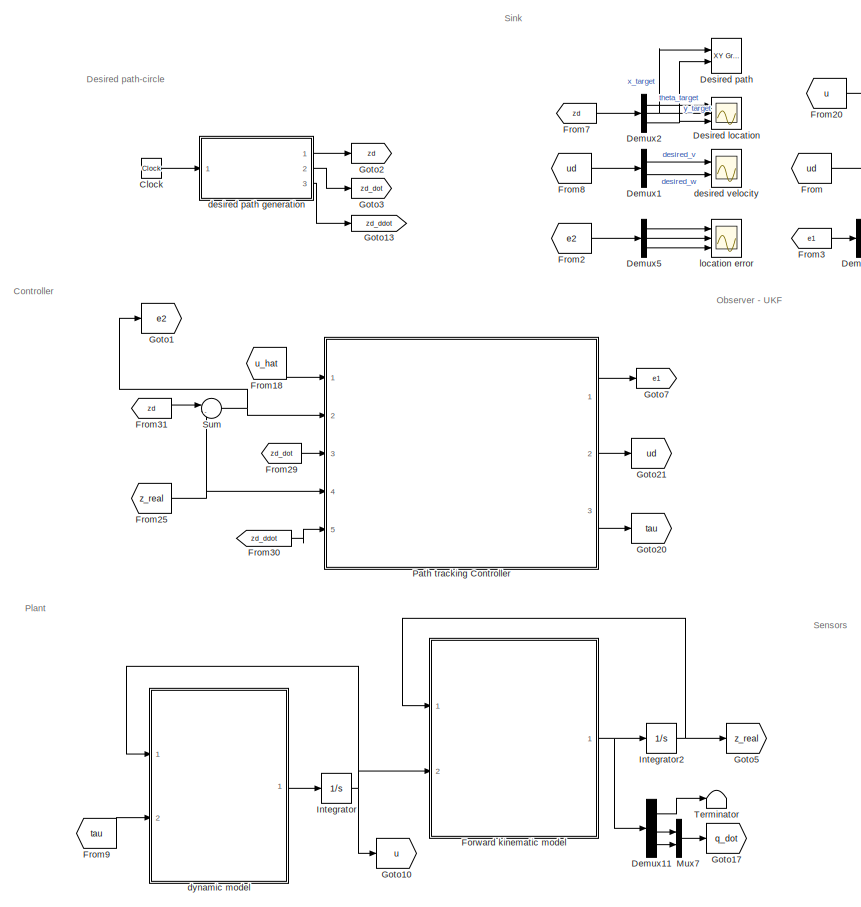
[diagram: root canvas - part 1/2, left side, full height]
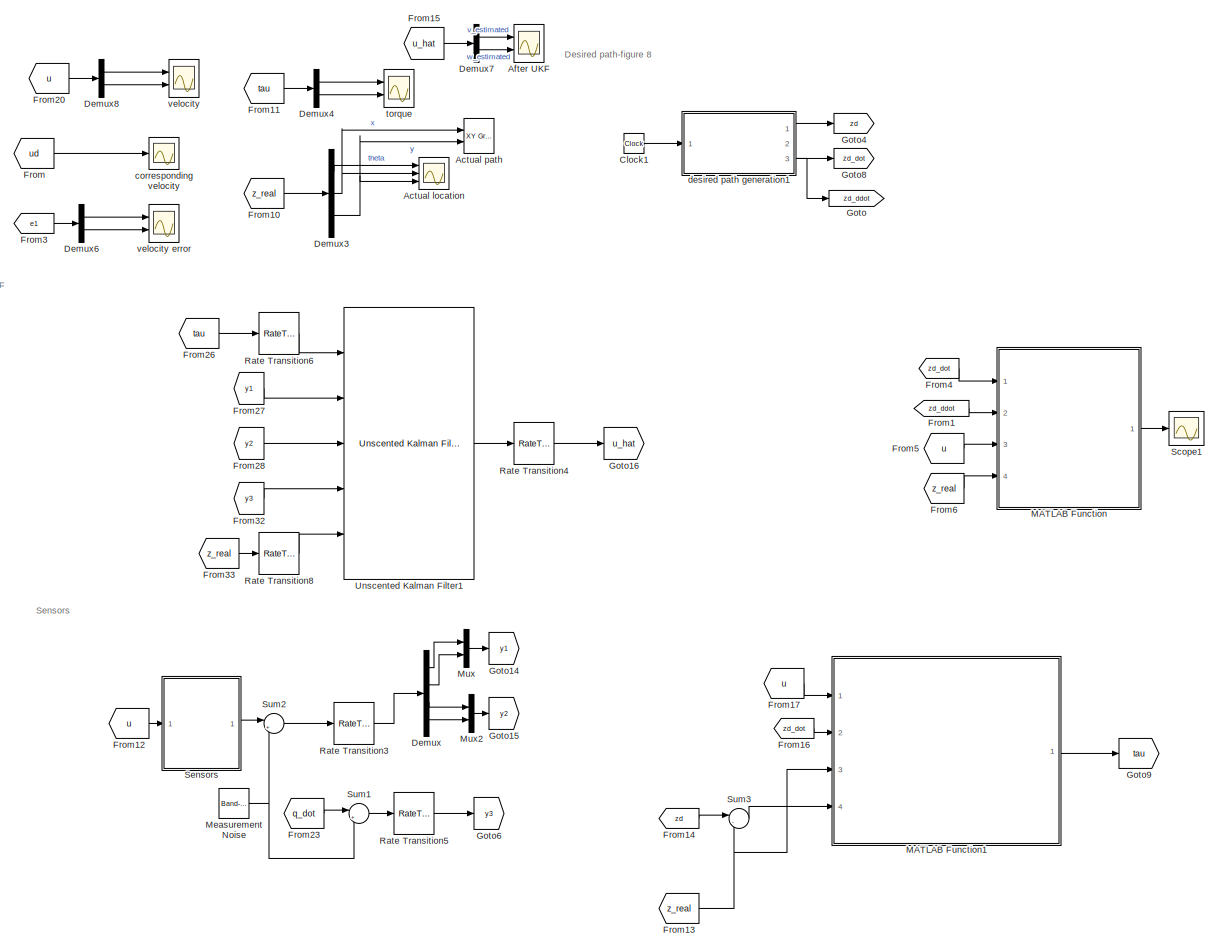
[diagram: root canvas - part 2/2, right side, full height]
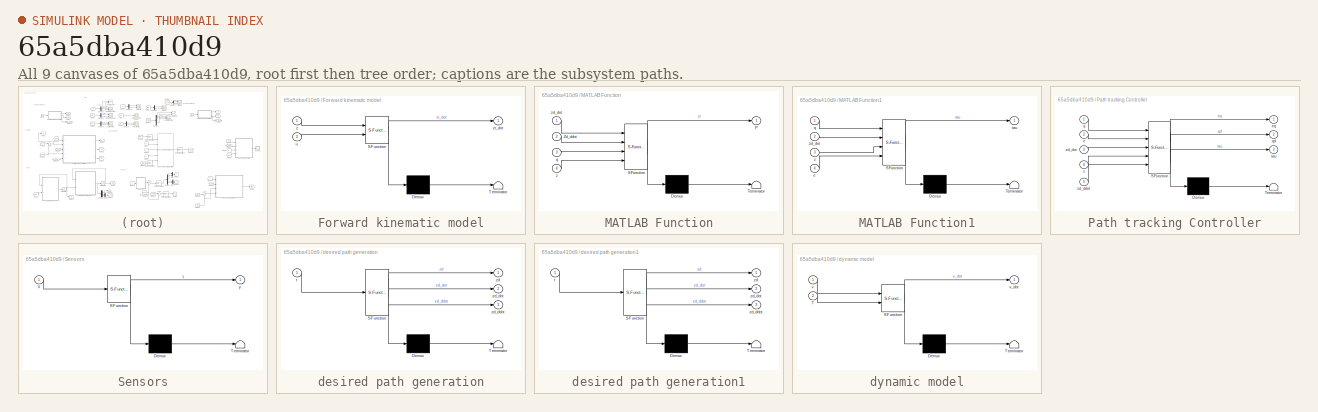
[diagram: thumbnail index - all 9 canvases of the model, root first then tree order]
MODEL slx_65a5dba410d9
KIND model
CONFIG AbsTol = auto
CONFIG EnableMultiTasking = off
CONFIG FixedStep = 1e-3
CONFIG MaxStep = 1e-2
CONFIG MinStep = auto
CONFIG RelTol = 1e-3
CONFIG SampleTimeConstraint = Unconstrained
CONFIG Solver = FixedStepAuto
CONFIG SolverName = FixedStepAuto
CONFIG StartTime = 0.0
CONFIG StopTime = 20
BLOCK [Scope] Actual location
  Floating = off
  NumInputPorts = 3
  Ports = [3]
  ScopeSpecificationString = Simulink.scopes.TimeScopeBlockCfg('CurrentConfiguration', extmgr.ConfigurationSet(extmgr.Configuration('Core','General UI',true),extmgr.Configuration('Core','Source UI',true),extmgr.Configuration('Sources','WiredSimulink',true,'DataLoggingVariableName','ScopeData3'),extmgr.Configuration('Visuals','Time Domain',true,'SerializedDisplays',{struct('MinYLimReal','-1.35586','MaxYLimReal','4.49764','YLab...<+2693ch>
BLOCK [Reference] Actual path  REF=simulink/Sinks/XY Graph
  Ports = [2]
  SourceBlock = simulink/Sinks/XY Graph
  SourceProductBaseCode = SL
  SourceProductName = Simulink
  SourceType = XY scope.
BLOCK [Scope] After UKF
  Floating = off
  NumInputPorts = 2
  Ports = [2]
  ScopeSpecificationString = Simulink.scopes.TimeScopeBlockCfg('CurrentConfiguration', extmgr.ConfigurationSet(extmgr.Configuration('Core','General UI',true),extmgr.Configuration('Core','Source UI',true),extmgr.Configuration('Sources','WiredSimulink',true,'DataLoggingVariableName','ScopeData1'),extmgr.Configuration('Visuals','Time Domain',true,'SerializedDisplays',{struct('MinYLimReal','-0.44906','MaxYLimReal','4.06747','YLab...<+2119ch>
BLOCK [Clock] Clock
  Commented = on
BLOCK [Clock] Clock1
BLOCK [Demux] Demux
  DisplayOption = bar
  Ports = [1, 4]
BLOCK [Demux] Demux1
  DisplayOption = bar
  Outputs = 2
  Ports = [1, 2]
BLOCK [Demux] Demux11
  DisplayOption = bar
  Outputs = 3
  Ports = [1, 3]
BLOCK [Demux] Demux2
  DisplayOption = bar
  Outputs = 3
  Ports = [1, 3]
BLOCK [Demux] Demux3
  DisplayOption = bar
  Outputs = 3
  Ports = [1, 3]
BLOCK [Demux] Demux4
  DisplayOption = bar
  Outputs = 2
  Ports = [1, 2]
BLOCK [Demux] Demux5
  DisplayOption = bar
  Outputs = 3
  Ports = [1, 3]
BLOCK [Demux] Demux6
  DisplayOption = bar
  Outputs = 2
  Ports = [1, 2]
BLOCK [Demux] Demux7
  DisplayOption = bar
  Outputs = 2
  Ports = [1, 2]
BLOCK [Demux] Demux8
  DisplayOption = bar
  Outputs = 2
  Ports = [1, 2]
BLOCK [Scope] Desired location
  Floating = off
  NumInputPorts = 3
  Ports = [3]
  ScopeSpecificationString = Simulink.scopes.TimeScopeBlockCfg('CurrentConfiguration', extmgr.ConfigurationSet(extmgr.Configuration('Core','General UI',true),extmgr.Configuration('Core','Source UI',true),extmgr.Configuration('Sources','WiredSimulink',true,'DataLoggingVariableName','ScopeData2'),extmgr.Configuration('Visuals','Time Domain',true,'SerializedDisplays',{struct('MinYLimReal','-0.98175','MaxYLimReal','0.98175','YLab...<+2703ch>
BLOCK [Reference] Desired path   REF=simulink/Sinks/XY Graph
  Ports = [2]
  SourceBlock = simulink/Sinks/XY Graph
  SourceProductBaseCode = SL
  SourceProductName = Simulink
  SourceType = XY scope.
BLOCK [SubSystem] Forward kinematic model
  ErrorFcn = Stateflow.Translate.translate
  PermitHierarchicalResolution = ExplicitOnly
  Ports = [2, 1]
  RequestExecContextInheritance = off
  SFBlockType = MATLAB Function
  TreatAsAtomicUnit = on
BLOCK [Demux] Forward kinematic model/ Demux 
  Outputs = 1
  Ports = [1, 1]
BLOCK [S-Function] Forward kinematic model/ SFunction 
  EnableBusSupport = on
  FunctionName = sf_sfun
  Parameters = d,r
  PortCounts = [2 2]
  Ports = [2, 2]
  SFcnIsStateOwnerBlock = off
  SFunctionDeploymentMode = off
  Tag = Stateflow S-Function 9
BLOCK [Terminator] Forward kinematic model/ Terminator 
BLOCK [Inport] Forward kinematic model/u
  IconDisplay = Port number
  Port = 2
BLOCK [Inport] Forward kinematic model/z
  IconDisplay = Port number
BLOCK [Outport] Forward kinematic model/zr_dot
  IconDisplay = Port number
  VectorParamsAs1DForOutWhenUnconnected = off
BLOCK [From] From
  GotoTag = ud
BLOCK [From] From1
  GotoTag = zd_ddot
BLOCK [From] From10
  GotoTag = z_real
BLOCK [From] From11
  GotoTag = tau
BLOCK [From] From12
  GotoTag = u
BLOCK [From] From13
  Commented = on
  GotoTag = z_real
BLOCK [From] From14
  Commented = on
  GotoTag = zd
BLOCK [From] From15
  GotoTag = u_hat
BLOCK [From] From16
  Commented = on
  GotoTag = zd_dot
BLOCK [From] From17
  Commented = on
  GotoTag = u
BLOCK [From] From18
  GotoTag = u_hat
BLOCK [From] From2
  GotoTag = e2
BLOCK [From] From20
  GotoTag = u
BLOCK [From] From23
  GotoTag = q_dot
BLOCK [From] From25
  GotoTag = z_real
BLOCK [From] From26
  GotoTag = tau
BLOCK [From] From27
  GotoTag = y1
BLOCK [From] From28
  GotoTag = y2
BLOCK [From] From29
  GotoTag = zd_dot
BLOCK [From] From3
  GotoTag = e1
BLOCK [From] From30
  GotoTag = zd_ddot
BLOCK [From] From31
  GotoTag = zd
BLOCK [From] From32
  GotoTag = y3
BLOCK [From] From33
  GotoTag = z_real
BLOCK [From] From4
  GotoTag = zd_dot
BLOCK [From] From5
  GotoTag = u
BLOCK [From] From6
  GotoTag = z_real
BLOCK [From] From7
  GotoTag = zd
BLOCK [From] From8
  GotoTag = ud
BLOCK [From] From9
  GotoTag = tau
BLOCK [Goto] Goto
  GotoTag = zd_ddot
BLOCK [Goto] Goto1
  GotoTag = e2
BLOCK [Goto] Goto10
  GotoTag = u
BLOCK [Goto] Goto13
  Commented = on
  GotoTag = zd_ddot
BLOCK [Goto] Goto14
  GotoTag = y1
BLOCK [Goto] Goto15
  GotoTag = y2
BLOCK [Goto] Goto16
  GotoTag = u_hat
BLOCK [Goto] Goto17
  GotoTag = q_dot
BLOCK [Goto] Goto2
  Commented = on
  GotoTag = zd
BLOCK [Goto] Goto20
  GotoTag = tau
BLOCK [Goto] Goto21
  GotoTag = ud
BLOCK [Goto] Goto3
  Commented = on
  GotoTag = zd_dot
BLOCK [Goto] Goto4
  GotoTag = zd
BLOCK [Goto] Goto5
  GotoTag = z_real
BLOCK [Goto] Goto6
  GotoTag = y3
BLOCK [Goto] Goto7
  GotoTag = e1
BLOCK [Goto] Goto8
  GotoTag = zd_dot
BLOCK [Goto] Goto9
  Commented = on
  GotoTag = tau
BLOCK [Integrator] Integrator
  InitialCondition = V_initial
  Ports = [1, 1]
BLOCK [Integrator] Integrator2
  InitialCondition = q_initial
  Ports = [1, 1]
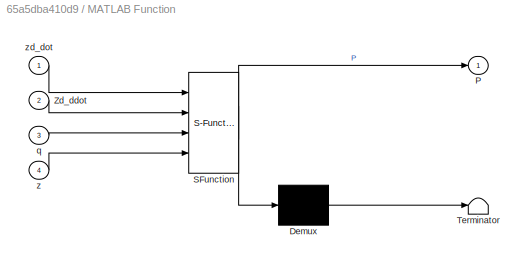
BLOCK [SubSystem] MATLAB Function
  ErrorFcn = Stateflow.Translate.translate
  PermitHierarchicalResolution = ExplicitOnly
  Ports = [4, 1]
  RequestExecContextInheritance = off
  SFBlockType = MATLAB Function
  TreatAsAtomicUnit = on
BLOCK [Demux] MATLAB Function/ Demux 
  Outputs = 1
  Ports = [1, 1]
BLOCK [S-Function] MATLAB Function/ SFunction 
  EnableBusSupport = on
  FunctionName = sf_sfun
  Parameters = I,L,d,m,r
  PortCounts = [4 2]
  Ports = [4, 2]
  SFcnIsStateOwnerBlock = off
  SFunctionDeploymentMode = off
  Tag = Stateflow S-Function 2
BLOCK [Terminator] MATLAB Function/ Terminator 
BLOCK [Outport] MATLAB Function/P
  IconDisplay = Port number
BLOCK [Inport] MATLAB Function/Zd_ddot
  IconDisplay = Port number
  Port = 2
BLOCK [Inport] MATLAB Function/q
  IconDisplay = Port number
  Port = 3
BLOCK [Inport] MATLAB Function/z
  IconDisplay = Port number
  Port = 4
BLOCK [Inport] MATLAB Function/zd_dot
  IconDisplay = Port number
BLOCK [SubSystem] MATLAB Function1
  Commented = on
  ErrorFcn = Stateflow.Translate.translate
  PermitHierarchicalResolution = ExplicitOnly
  Ports = [4, 1]
  RequestExecContextInheritance = off
  SFBlockType = MATLAB Function
  TreatAsAtomicUnit = on
BLOCK [Demux] MATLAB Function1/ Demux 
  Outputs = 1
  Ports = [1, 1]
BLOCK [S-Function] MATLAB Function1/ SFunction 
  EnableBusSupport = on
  FunctionName = sf_sfun
  Parameters = d
  PortCounts = [4 2]
  Ports = [4, 2]
  SFcnIsStateOwnerBlock = off
  SFunctionDeploymentMode = off
  Tag = Stateflow S-Function 3
BLOCK [Terminator] MATLAB Function1/ Terminator 
BLOCK [Inport] MATLAB Function1/e
  IconDisplay = Port number
  Port = 4
BLOCK [Inport] MATLAB Function1/q
  IconDisplay = Port number
BLOCK [Outport] MATLAB Function1/tau
  IconDisplay = Port number
BLOCK [Inport] MATLAB Function1/z
  IconDisplay = Port number
  Port = 3
BLOCK [Inport] MATLAB Function1/zd_dot
  IconDisplay = Port number
  Port = 2
BLOCK [Reference] Measurement Noise  REF=simulink/Sources/Band-Limited
White Noise
  Ports = [0, 1]
  SourceBlock = simulink/Sources/Band-Limited\nWhite Noise
  SourceProductBaseCode = SL
  SourceProductName = Simulink
  SourceType = Band-Limited White Noise.
BLOCK [Mux] Mux
  DisplayOption = bar
  Inputs = 2
  Ports = [2, 1]
BLOCK [Mux] Mux2
  DisplayOption = bar
  Inputs = 2
  Ports = [2, 1]
BLOCK [Mux] Mux7
  DisplayOption = bar
  Inputs = 2
  Ports = [2, 1]
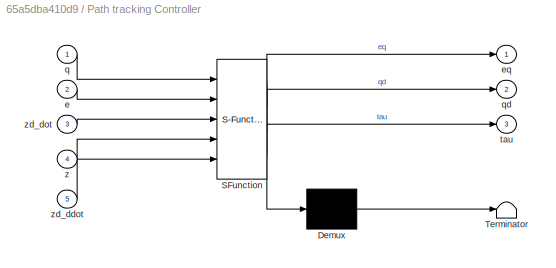
BLOCK [SubSystem] Path tracking Controller
  ErrorFcn = Stateflow.Translate.translate
  PermitHierarchicalResolution = ExplicitOnly
  Ports = [5, 3]
  RequestExecContextInheritance = off
  SFBlockType = MATLAB Function
  TreatAsAtomicUnit = on
BLOCK [Demux] Path tracking Controller/ Demux 
  Outputs = 1
  Ports = [1, 1]
BLOCK [S-Function] Path tracking Controller/ SFunction 
  EnableBusSupport = on
  FunctionName = sf_sfun
  Parameters = I,L,d,m,r
  PortCounts = [5 4]
  Ports = [5, 4]
  SFcnIsStateOwnerBlock = off
  SFunctionDeploymentMode = off
  Tag = Stateflow S-Function 7
BLOCK [Terminator] Path tracking Controller/ Terminator 
BLOCK [Inport] Path tracking Controller/e
  IconDisplay = Port number
  Port = 2
BLOCK [Outport] Path tracking Controller/eq
  IconDisplay = Port number
BLOCK [Inport] Path tracking Controller/q
  IconDisplay = Port number
BLOCK [Outport] Path tracking Controller/qd
  IconDisplay = Port number
  Port = 2
BLOCK [Outport] Path tracking Controller/tau
  IconDisplay = Port number
  Port = 3
BLOCK [Inport] Path tracking Controller/z
  IconDisplay = Port number
  Port = 4
BLOCK [Inport] Path tracking Controller/zd_ddot
  IconDisplay = Port number
  Port = 5
BLOCK [Inport] Path tracking Controller/zd_dot
  IconDisplay = Port number
  Port = 3
BLOCK [RateTransition] Rate Transition3
  InitialCondition = [0 0 0 0]
  OutPortSampleTime = Ts
BLOCK [RateTransition] Rate Transition4
  InitialCondition = 1.6
  Integrity = off
  OutPortSampleTime = 0
BLOCK [RateTransition] Rate Transition5
  InitialCondition = [0 0 ]
  OutPortSampleTime = Ts
BLOCK [RateTransition] Rate Transition6
  InitialCondition = [0 0]
  OutPortSampleTime = Ts
BLOCK [RateTransition] Rate Transition8
  InitialCondition = [0 0 0]
  OutPortSampleTime = Ts
BLOCK [Scope] Scope1
  Floating = off
  NumInputPorts = 1
  Ports = [1]
  ScopeSpecificationString = Simulink.scopes.TimeScopeBlockCfg('CurrentConfiguration', extmgr.ConfigurationSet(extmgr.Configuration('Core','General UI',true),extmgr.Configuration('Core','Source UI',true),extmgr.Configuration('Sources','WiredSimulink',true,'DataLoggingVariableName','ScopeData1'),extmgr.Configuration('Visuals','Time Domain',true,'SerializedDisplays',{struct('MinYLimReal','-0.65449','MaxYLimReal','6.36185','YLab...<+1428ch>
BLOCK [SubSystem] Sensors
  ErrorFcn = Stateflow.Translate.translate
  PermitHierarchicalResolution = ExplicitOnly
  Ports = [1, 1]
  RequestExecContextInheritance = off
  SFBlockType = MATLAB Function
  TreatAsAtomicUnit = on
BLOCK [Demux] Sensors/ Demux 
  Outputs = 1
  Ports = [1, 1]
BLOCK [S-Function] Sensors/ SFunction 
  EnableBusSupport = on
  FunctionName = sf_sfun
  Parameters = L,r
  PortCounts = [1 2]
  Ports = [1, 2]
  SFcnIsStateOwnerBlock = off
  SFunctionDeploymentMode = off
  Tag = Stateflow S-Function 4
BLOCK [Terminator] Sensors/ Terminator 
BLOCK [Inport] Sensors/V
  IconDisplay = Port number
BLOCK [Outport] Sensors/y
  IconDisplay = Port number
BLOCK [Sum] Sum
  IconShape = round
  InputSameDT = off
  Inputs = |-+
  OutDataTypeStr = Inherit: Inherit via internal rule
  Ports = [2, 1]
  SaturateOnIntegerOverflow = off
BLOCK [Sum] Sum1
  IconShape = round
  InputSameDT = off
  Inputs = |++
  OutDataTypeStr = Inherit: Inherit via internal rule
  Ports = [2, 1]
  SaturateOnIntegerOverflow = off
BLOCK [Sum] Sum2
  IconShape = round
  InputSameDT = off
  Inputs = |++
  OutDataTypeStr = Inherit: Inherit via internal rule
  Ports = [2, 1]
  SaturateOnIntegerOverflow = off
BLOCK [Sum] Sum3
  Commented = on
  IconShape = round
  InputSameDT = off
  Inputs = |-+
  OutDataTypeStr = Inherit: Inherit via internal rule
  Ports = [2, 1]
  SaturateOnIntegerOverflow = off
BLOCK [Terminator] Terminator
BLOCK [Reference] Unscented Kalman Filter1  REF=sharedTrackingLibrary/Unscented Kalman Filter
  Ports = [5, 1]
  SourceBlock = sharedTrackingLibrary/Unscented Kalman Filter
  SourceProductBaseCode = DR
  SourceProductName = Automated Driving Toolbox
  SourceType = Unscented Kalman Filter
BLOCK [Scope] corresponding velocity
  Floating = off
  NumInputPorts = 1
  Ports = [1]
  ScopeSpecificationString = Simulink.scopes.TimeScopeBlockCfg('CurrentConfiguration', extmgr.ConfigurationSet(extmgr.Configuration('Core','General UI',true),extmgr.Configuration('Core','Source UI',true),extmgr.Configuration('Sources','WiredSimulink',true,'DataLoggingVariableName','ScopeData1'),extmgr.Configuration('Visuals','Time Domain',true,'SerializedDisplays',{struct('MinYLimReal','-913.91425','MaxYLimReal','744.08544','...<+1464ch>
BLOCK [SubSystem] desired path generation
  Commented = on
  ErrorFcn = Stateflow.Translate.translate
  PermitHierarchicalResolution = ExplicitOnly
  Ports = [1, 3]
  RequestExecContextInheritance = off
  SFBlockType = MATLAB Function
  TreatAsAtomicUnit = on
BLOCK [Demux] desired path generation/ Demux 
  Outputs = 1
  Ports = [1, 1]
BLOCK [S-Function] desired path generation/ SFunction 
  EnableBusSupport = on
  FunctionName = sf_sfun
  PortCounts = [1 4]
  Ports = [1, 4]
  SFcnIsStateOwnerBlock = off
  SFunctionDeploymentMode = off
  Tag = Stateflow S-Function 12
BLOCK [Terminator] desired path generation/ Terminator 
BLOCK [Inport] desired path generation/t
  IconDisplay = Port number
BLOCK [Outport] desired path generation/zd
  IconDisplay = Port number
BLOCK [Outport] desired path generation/zd_ddot
  IconDisplay = Port number
  Port = 3
BLOCK [Outport] desired path generation/zd_dot
  IconDisplay = Port number
  Port = 2
BLOCK [SubSystem] desired path generation1
  ErrorFcn = Stateflow.Translate.translate
  PermitHierarchicalResolution = ExplicitOnly
  Ports = [1, 3]
  RequestExecContextInheritance = off
  SFBlockType = MATLAB Function
  TreatAsAtomicUnit = on
BLOCK [Demux] desired path generation1/ Demux 
  Outputs = 1
  Ports = [1, 1]
BLOCK [S-Function] desired path generation1/ SFunction 
  EnableBusSupport = on
  FunctionName = sf_sfun
  PortCounts = [1 4]
  Ports = [1, 4]
  SFcnIsStateOwnerBlock = off
  SFunctionDeploymentMode = off
  Tag = Stateflow S-Function 1
BLOCK [Terminator] desired path generation1/ Terminator 
BLOCK [Inport] desired path generation1/t
  IconDisplay = Port number
BLOCK [Outport] desired path generation1/zd
  IconDisplay = Port number
BLOCK [Outport] desired path generation1/zd_ddot
  IconDisplay = Port number
  Port = 3
BLOCK [Outport] desired path generation1/zd_dot
  IconDisplay = Port number
  Port = 2
BLOCK [Scope] desired velocity
  Floating = off
  NumInputPorts = 2
  Ports = [2]
  ScopeSpecificationString = Simulink.scopes.TimeScopeBlockCfg('CurrentConfiguration', extmgr.ConfigurationSet(extmgr.Configuration('Core','General UI',true),extmgr.Configuration('Core','Source UI',true),extmgr.Configuration('Sources','WiredSimulink',true,'DataLoggingVariableName','ScopeData1'),extmgr.Configuration('Visuals','Time Domain',true,'SerializedDisplays',{struct('MinYLimReal','-1.54437','MaxYLimReal','11.28335','YLa...<+2064ch>
BLOCK [SubSystem] dynamic model
  ErrorFcn = Stateflow.Translate.translate
  PermitHierarchicalResolution = ExplicitOnly
  Ports = [2, 1]
  RequestExecContextInheritance = off
  SFBlockType = MATLAB Function
  TreatAsAtomicUnit = on
BLOCK [Demux] dynamic model/ Demux 
  Outputs = 1
  Ports = [1, 1]
BLOCK [S-Function] dynamic model/ SFunction 
  EnableBusSupport = on
  FunctionName = sf_sfun
  Parameters = I,L,d,m,r
  PortCounts = [2 2]
  Ports = [2, 2]
  SFcnIsStateOwnerBlock = off
  SFunctionDeploymentMode = off
  Tag = Stateflow S-Function 10
BLOCK [Terminator] dynamic model/ Terminator 
BLOCK [Inport] dynamic model/T
  IconDisplay = Port number
  Port = 2
BLOCK [Inport] dynamic model/v
  IconDisplay = Port number
BLOCK [Outport] dynamic model/v_dot
  IconDisplay = Port number
BLOCK [Scope] location error
  Floating = off
  NumInputPorts = 3
  Ports = [3]
  ScopeSpecificationString = Simulink.scopes.TimeScopeBlockCfg('CurrentConfiguration', extmgr.ConfigurationSet(extmgr.Configuration('Core','General UI',true),extmgr.Configuration('Core','Source UI',true),extmgr.Configuration('Sources','WiredSimulink',true,'DataLoggingVariableName','ScopeData1'),extmgr.Configuration('Visuals','Time Domain',true,'SerializedDisplays',{struct('MinYLimReal','-0.3946','MaxYLimReal','3.5264','YLabel...<+2752ch>
BLOCK [Scope] torque
  Floating = off
  NumInputPorts = 2
  Ports = [2]
  ScopeSpecificationString = Simulink.scopes.TimeScopeBlockCfg('CurrentConfiguration', extmgr.ConfigurationSet(extmgr.Configuration('Core','General UI',true),extmgr.Configuration('Core','Source UI',true),extmgr.Configuration('Sources','WiredSimulink',true,'DataLoggingVariableName','ScopeData4'),extmgr.Configuration('Visuals','Time Domain',true,'SerializedDisplays',{struct('MinYLimReal','-386.00427','MaxYLimReal','769.75081','...<+1989ch>
BLOCK [Scope] velocity
  Floating = off
  NumInputPorts = 2
  Ports = [2]
  ScopeSpecificationString = Simulink.scopes.TimeScopeBlockCfg('CurrentConfiguration', extmgr.ConfigurationSet(extmgr.Configuration('Core','General UI',true),extmgr.Configuration('Core','Source UI',true),extmgr.Configuration('Sources','WiredSimulink',true,'DataLoggingVariableName','ScopeData2'),extmgr.Configuration('Visuals','Time Domain',true,'SerializedDisplays',{struct('MinYLimReal','-0.7456','MaxYLimReal','6.7104','YLabel...<+2055ch>
BLOCK [Scope] velocity error
  Floating = off
  NumInputPorts = 2
  Ports = [2]
  ScopeSpecificationString = Simulink.scopes.TimeScopeBlockCfg('CurrentConfiguration', extmgr.ConfigurationSet(extmgr.Configuration('Core','General UI',true),extmgr.Configuration('Core','Source UI',true),extmgr.Configuration('Sources','WiredSimulink',true,'DataLoggingVariableName','ScopeData1'),extmgr.Configuration('Visuals','Time Domain',true,'SerializedDisplays',{struct('MinYLimReal','-11.31601','MaxYLimReal','1.86426','YLa...<+2063ch>
ANNOTATION (root): Controller
ANNOTATION (root): Desired path-circle
ANNOTATION (root): Desired path-figure 8
ANNOTATION (root): Observer - UKF
ANNOTATION (root): Plant
ANNOTATION (root): Sensors
ANNOTATION (root): Sink
LINE Clock1:1 -> desired path generation1:1
LINE Clock:1 -> desired path generation:1
LINE Demux11:1 -> Terminator:1
LINE Demux11:2 -> Mux7:1
LINE Demux11:3 -> Mux7:2
LINE Demux1:1 -> desired velocity:1
LINE Demux1:2 -> desired velocity:2
LINE Demux2:1 -> Desired location:1
NET Demux2:2 -> Desired location:2, Desired path :1
NET Demux2:3 -> Desired location:3, Desired path :2
LINE Demux3:1 -> Actual location:1
NET Demux3:2 -> Actual location:2, Actual path:1
NET Demux3:3 -> Actual location:3, Actual path:2
LINE Demux4:1 -> torque:1
LINE Demux4:2 -> torque:2
LINE Demux5:1 -> location error:1
LINE Demux5:2 -> location error:2
LINE Demux5:3 -> location error:3
LINE Demux6:1 -> velocity error:1
LINE Demux6:2 -> velocity error:2
LINE Demux7:1 -> After UKF:1
LINE Demux7:2 -> After UKF:2
LINE Demux8:1 -> velocity:1
LINE Demux8:2 -> velocity:2
LINE Demux:1 -> Mux:1
LINE Demux:2 -> Mux:2
LINE Demux:3 -> Mux2:1
LINE Demux:4 -> Mux2:2
NET Forward kinematic model:1 -> Demux11:1, Integrator2:1
LINE From10:1 -> Demux3:1
LINE From11:1 -> Demux4:1
LINE From12:1 -> Sensors:1
NET From13:1 -> MATLAB Function1:3, Sum3:2
LINE From14:1 -> Sum3:1
LINE From15:1 -> Demux7:1
LINE From16:1 -> MATLAB Function1:2
LINE From17:1 -> MATLAB Function1:1
LINE From18:1 -> Path tracking Controller:1
LINE From1:1 -> MATLAB Function:2
LINE From20:1 -> Demux8:1
LINE From23:1 -> Sum1:1
NET From25:1 -> Path tracking Controller:4, Sum:2
LINE From26:1 -> Rate Transition6:1
LINE From27:1 -> Unscented Kalman Filter1:2
LINE From28:1 -> Unscented Kalman Filter1:3
LINE From29:1 -> Path tracking Controller:3
LINE From2:1 -> Demux5:1
LINE From30:1 -> Path tracking Controller:5
LINE From31:1 -> Sum:1
LINE From32:1 -> Unscented Kalman Filter1:4
LINE From33:1 -> Rate Transition8:1
LINE From3:1 -> Demux6:1
LINE From4:1 -> MATLAB Function:1
LINE From5:1 -> MATLAB Function:3
LINE From6:1 -> MATLAB Function:4
LINE From7:1 -> Demux2:1
LINE From8:1 -> Demux1:1
LINE From9:1 -> dynamic model:2
LINE From:1 -> corresponding velocity:1
NET Integrator2:1 -> Forward kinematic model:1, Goto5:1
NET Integrator:1 -> Forward kinematic model:2, Goto10:1, dynamic model:1
LINE MATLAB Function1:1 -> Goto9:1
LINE MATLAB Function:1 -> Scope1:1
NET Measurement Noise:1 -> Sum1:2, Sum2:2
LINE Mux2:1 -> Goto15:1
LINE Mux7:1 -> Goto17:1
LINE Mux:1 -> Goto14:1
LINE Path tracking Controller:1 -> Goto7:1
LINE Path tracking Controller:2 -> Goto21:1
LINE Path tracking Controller:3 -> Goto20:1
LINE Rate Transition3:1 -> Demux:1
LINE Rate Transition4:1 -> Goto16:1
LINE Rate Transition5:1 -> Goto6:1
LINE Rate Transition6:1 -> Unscented Kalman Filter1:1
LINE Rate Transition8:1 -> Unscented Kalman Filter1:5
LINE Sensors:1 -> Sum2:1
LINE Sum1:1 -> Rate Transition5:1
LINE Sum2:1 -> Rate Transition3:1
LINE Sum3:1 -> MATLAB Function1:4
NET Sum:1 -> Goto1:1, Path tracking Controller:2
LINE Unscented Kalman Filter1:1 -> Rate Transition4:1
LINE desired path generation1:1 -> Goto4:1
LINE desired path generation1:2 -> Goto8:1
LINE desired path generation1:3 -> Goto:1
LINE desired path generation:1 -> Goto2:1
LINE desired path generation:2 -> Goto3:1
LINE desired path generation:3 -> Goto13:1
LINE dynamic model:1 -> Integrator:1
note: NET lines group one-source signal fan-out (src -> all destinations, sorted); 1:1 wires keep LINE
CHART desired path generation1 states=1 transitions=1
  STATE_LABEL 'eML_blk_kernel()'
  STATE_LABEL 'SCRIPT:\nfunction [zd,zd_dot,zd_ddot] = fcn(t)\n\na=1;\nx = a*cos(t)/(1+sin(t)^2);\ny = a*sin(t)*cos(t)/(1+sin(t)^2);\n% unit circle (radius = 1; origin: (0,0))\nzd = [atan(y./x);              % theta\n      a*cos(t)/(1+sin(t)^2);         % x\n      a*sin(t)*cos(t)/(1+sin(t)^2)];        % y\n\nzd_dot = [-a*sin(t)*(cos(t)^2+2)/(1+sin(t)^2)^2;\n          (a*cos(t)^2-2*a*sin(t)^2)/(1+sin(t)^2)^2];\n\nz1 = (a*sin(t...<+150ch>'
CHART MATLAB Function states=1 transitions=1
  STATE_LABEL 'eML_blk_kernel()'
  STATE_LABEL 'SCRIPT:\nfunction P = fcn(zd_dot,Zd_ddot,q,z,m, d, r, L, I)\n\nomega = q(2);\n% theta = z(1);\nx = z(2);\ny = z(3);\ntheta = atan(y/x);\n\n\nB_inver=-(r/(2*L))*[-L,-1;-L,1];\nM=[m,0;\n   0,m*d*d+I];\nM_temp=[m*d*d+I,0;\n         0,m];\nM_inver=(1/(m*(m*d*d+I)))*M_temp;\nC = [cos(theta), -d*sin(theta);\n     sin(theta), d*cos(theta)];\nC_inver = (1/d)*[d*cos(theta), d*sin(theta);\n                 -sin(theta), cos(th...<+264ch>'
CHART MATLAB Function1 states=1 transitions=1
  STATE_LABEL 'eML_blk_kernel()'
  STATE_LABEL 'SCRIPT:\nfunction tau = fcn(q,zd_dot,z,e, d)\n\n\ntheta =z(1);\nC = [cos(theta), -d*sin(theta);\n     sin(theta), d*cos(theta)];\nx1 =e(2:3);\nx2 = C*q-zd_dot;\na1 =1;\n\n\nS = x2+a1*x1;\n\n\nk1 =5000;\nk2 =10000;\ntau = -k1*S-k2*sign(S);\n'
CHART Sensors states=1 transitions=1
  STATE_LABEL 'eML_blk_kernel()'
  STATE_LABEL 'SCRIPT:\nfunction y = fcn(V,r,L)\n\nC=[1,0;\n    0,1;\n    1/(4*r),L/(4*r);\n    1/(4*r),-L/(4*r)];\ny=C*V;\n'
CHART Path tracking Controller states=1 transitions=1
  STATE_LABEL 'eML_blk_kernel()'
  STATE_LABEL 'SCRIPT:\nfunction [eq,qd,tau] = fcn(q,e,zd_dot,z,zd_ddot,m, d, r, L, I)\n\n\nkq =15;\nke =15;\nez = e(2:3);\n% e_theta = e(1);\ntheta = z(1);\nomega = q(2);\n\nB_inver=-(r/(2*L))*[-L,-1;-L,1];\nM=[m,0;\n    0,m*d*d+I];\nD=[0,-m*d*omega;\n    m*d*omega,0];\nC = [cos(theta), -d*sin(theta);\n     sin(theta), d*cos(theta)];\nC_bar_tran = [0, cos(theta), sin(theta);\n              1, -d*sin(theta), d*cos(theta)];\nC_inver...<+388ch>'
CHART Forward kinematic model states=1 transitions=1
  STATE_LABEL 'eML_blk_kernel()'
  STATE_LABEL 'SCRIPT:\nfunction zr_dot = fcn(z,u,d,r)\n\n%% unpacking the state vectors\ntheta=z(1);\n\n%% unpacking the intput\nv=u(1);\nomega=u(2);\n\n%% ODE\ntheta_dot=omega;\nx_dot=v*cos(theta)-d*omega*sin(theta);\ny_dot=v*sin(theta)+d*omega*cos(theta);\n% phir_dot = (v+omega)/r;\n% phil_dot = (v-omega)/r;\n\n\n%% packing the output\nzr_dot=[theta_dot;x_dot;y_dot];\n\n'
CHART dynamic model states=1 transitions=1
  STATE_LABEL 'eML_blk_kernel()'
  STATE_LABEL 'SCRIPT:\nfunction v_dot = fcn(v, T,L, r, d, m,I)\n\n%% unpacking intput\nomega=v(2);\n\n%% Parameter\nM_temp=[m*d*d+I,0;\n         0,m];\n\nM_inver=(1/(m*(m*d*d+I)))*M_temp;\n\nD=[0,-m*d*omega;\n    m*d*omega,0];\n\nB=(1/r)*[1,1;L,-L];\n\n%% ODE\nv_dot=M_inver*(-D*v+B*T);\n'
CHART desired path generation states=1 transitions=1
  STATE_LABEL 'eML_blk_kernel()'
  STATE_LABEL 'SCRIPT:\nfunction [zd,zd_dot,zd_ddot] = fcn(t)\n\n\n% unit circle (radius = 1; origin: (0,0))\nzd = [t;\n      cos(t);         % x\n      sin(t)];        % y\n\nzd_dot = [-sin(t);\n          cos(t)];\n      \nzd_ddot = [-cos(t);\n           -sin(t)];\n'
